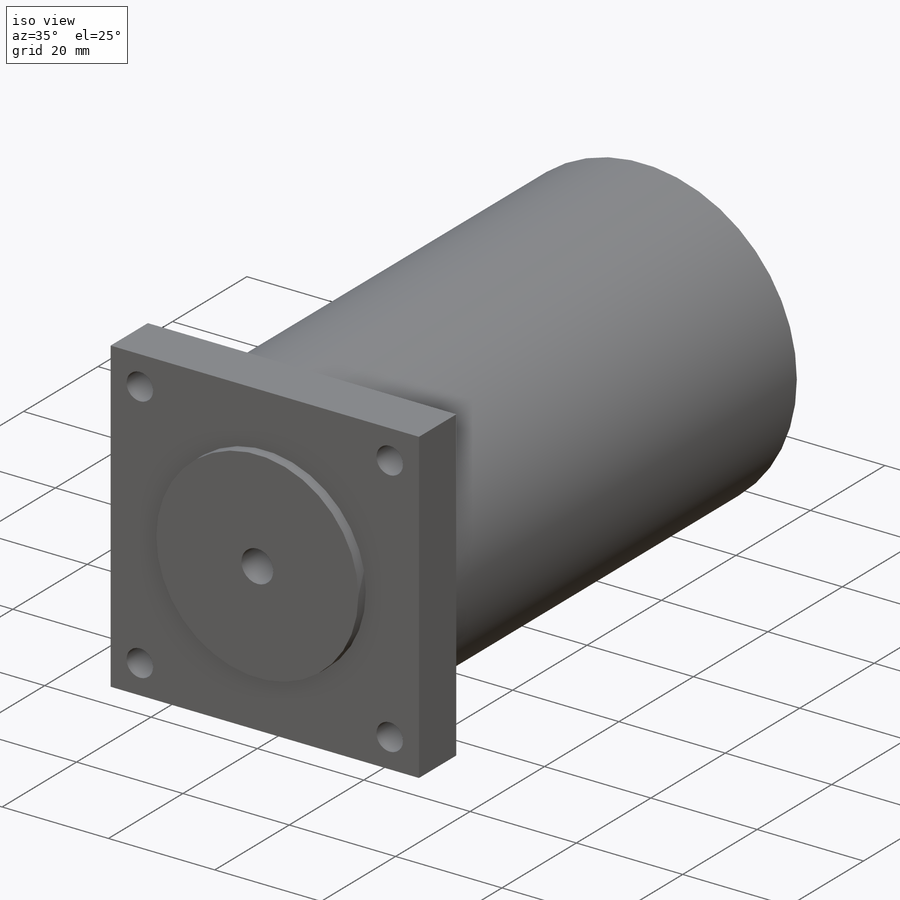
[diagram: iso view]
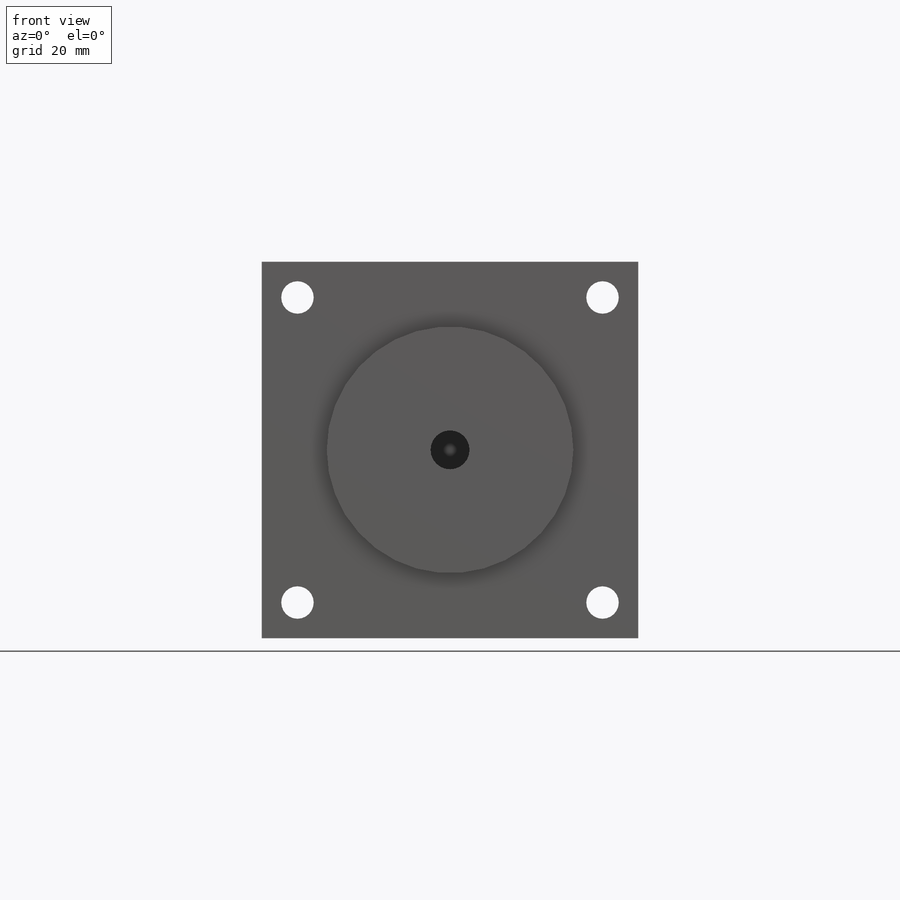
[diagram: front view]
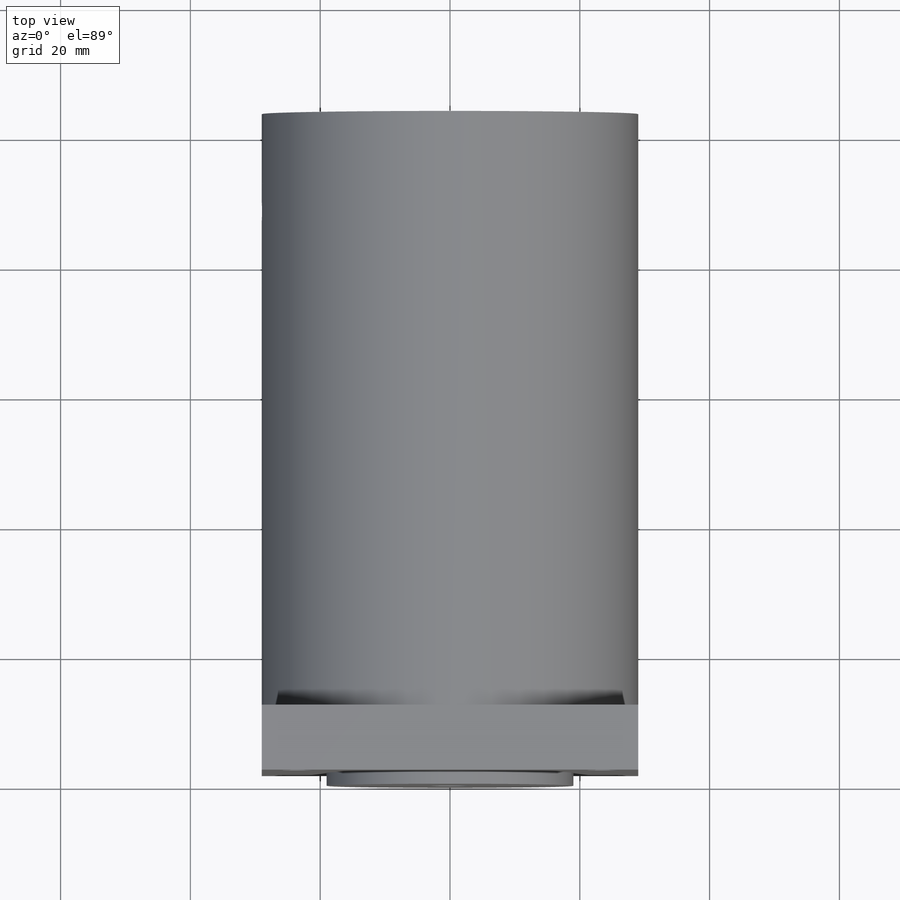
[diagram: top view]
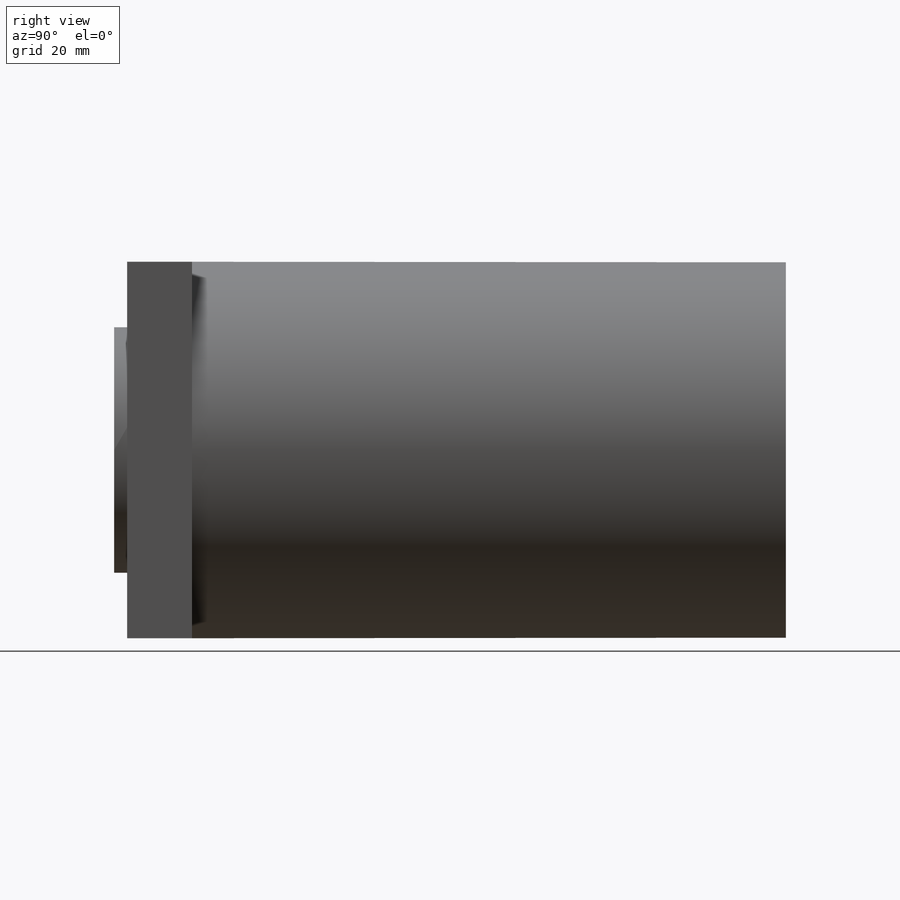
[diagram: right view]
SOLIDWORKS PART (.sldprt)
format: sldprt  version: not decoded by parser v0  size: 206,336 bytes
history: native  units: mm
features: sketch x6, extrude x3, cut_extrude x3, material x1 (+12 scaffold rows collapsed)
feature tree (25):
  scaffold x12  (default folders/planes/origin — collapsed)
  material  "1060 Alloy"
  sketch  "Sketch1"  dims[D1=38.0mm]
  extrude  "Boss-Extrude1"  Depth=2mm
  sketch  "Sketch3"  dims[c1.D1=29.0mm c1.D2=29.0mm c1.D3=58.0mm c1.D4=58.0mm c2.D3=58.0mm]
  extrude  "Boss-Extrude2"  Depth=10mm
  sketch  "Sketch4"  dims[D1=58.0mm]
  extrude  "Boss-Extrude3"  Depth=91.5mm
  sketch  "Sketch5"  dims[c1.D3=5.0mm c1.D1=5.5mm c1.D2=5.5mm c2.D3=~0.179504mm]
  cut_extrude  "Cut-Extrude1"  Depth=10mm
  sketch  "Sketch6"  dims[D1=6.0mm]
  cut_extrude  "Cut-Extrude2"  Depth=12mm
  sketch  "Sketch7"  dims[c1.D2=3.0mm c1.D1=15.0mm c2.D2=~31.429648mm]
  cut_extrude  "Cut-Extrude4"  [1 undecoded]
decode coverage: 11 of 12 modeling features carry decoded parameters
note: ~ marks probable driven/reference dimensions
note: 1 parameter value undecoded
note: suppression state not decoded; provenance and decode notes live in map.json
